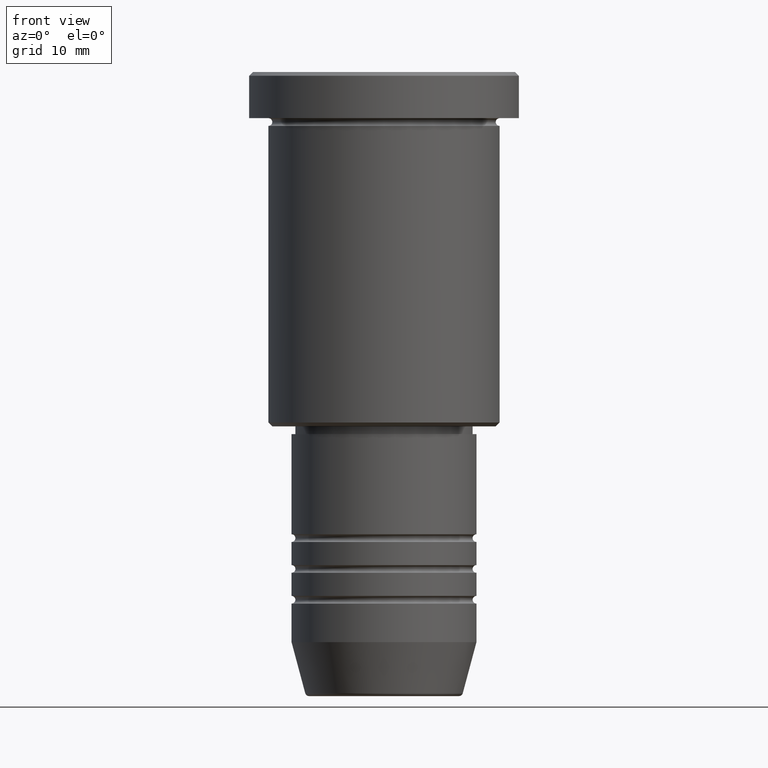
[diagram: clean part render]
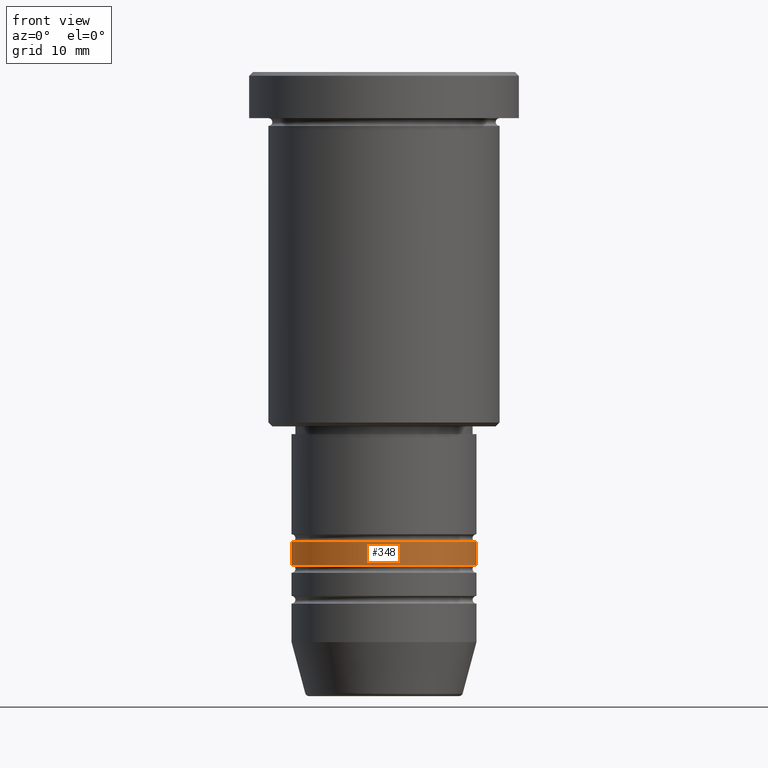
[diagram: same view with one face highlighted and labeled with its STEP entity id]
A machine part, front view. The second image highlights one B-rep face of the part: STEP entity #348.
In plain terms, the highlighted cylindrical surface (partial cylindrical patch) has radius 12 mm, axis along (-0, -0, 1).
Its self-contained STEP definition (entity closure, byte-faithful):
#15 = EDGE_CURVE ( 'NONE', #721, #742, #250, .T. ) ;
#41 = VECTOR ( 'NONE', #601, 1000.000000000000000 ) ;
#58 = DIRECTION ( 'NONE',  ( -0.000000000000000000, -0.000000000000000000, 1.000000000000000000 ) ) ;
#70 = DIRECTION ( 'NONE',  ( -0.000000000000000000, -0.000000000000000000, 1.000000000000000000 ) ) ;
#147 = ORIENTED_EDGE ( 'NONE', *, *, #713, .T. ) ;
#152 = DIRECTION ( 'NONE',  ( 1.000000000000000000, 0.000000000000000000, 0.000000000000000000 ) ) ;
#171 = CARTESIAN_POINT ( 'NONE',  ( -12.00000000000000000, 1.469576158976824144E-15, -60.99999999999990052 ) ) ;
#250 = LINE ( 'NONE', #509, #41 ) ;
#251 = CARTESIAN_POINT ( 'NONE',  ( 0.000000000000000000, 0.000000000000000000, -60.99999999999990052 ) ) ;
#264 = CARTESIAN_POINT ( 'NONE',  ( 12.00000000000000178, 0.000000000000000000, 0.000000000000000000 ) ) ;
#267 = FACE_OUTER_BOUND ( 'NONE', #1013, .T. ) ;
#290 = CARTESIAN_POINT ( 'NONE',  ( 12.00000000000000355, 0.000000000000000000, -63.99999999999991473 ) ) ;
#298 = ORIENTED_EDGE ( 'NONE', *, *, #1172, .T. ) ;
#338 = DIRECTION ( 'NONE',  ( -0.000000000000000000, -0.000000000000000000, 1.000000000000000000 ) ) ;
#348 = ADVANCED_FACE ( 'NONE', ( #267 ), #513, .T. ) ;
#356 = LINE ( 'NONE', #264, #1085 ) ;
#428 = DIRECTION ( 'NONE',  ( 1.000000000000000000, 0.000000000000000000, 0.000000000000000000 ) ) ;
#440 = VERTEX_POINT ( 'NONE', #290 ) ;
#464 = CIRCLE ( 'NONE', #602, 12.00000000000000355 ) ;
#476 = CARTESIAN_POINT ( 'NONE',  ( 12.00000000000000000, 0.000000000000000000, -60.99999999999990052 ) ) ;
#509 = CARTESIAN_POINT ( 'NONE',  ( -12.00000000000000178, 1.469576158976824144E-15, 0.000000000000000000 ) ) ;
#513 = CYLINDRICAL_SURFACE ( 'NONE', #836, 12.00000000000000178 ) ;
#528 = CARTESIAN_POINT ( 'NONE',  ( 0.000000000000000000, 0.000000000000000000, 0.000000000000000000 ) ) ;
#535 = DIRECTION ( 'NONE',  ( -0.000000000000000000, -0.000000000000000000, 1.000000000000000000 ) ) ;
#601 = DIRECTION ( 'NONE',  ( -0.000000000000000000, -0.000000000000000000, 1.000000000000000000 ) ) ;
#602 = AXIS2_PLACEMENT_3D ( 'NONE', #794, #338, #428 ) ;
#683 = AXIS2_PLACEMENT_3D ( 'NONE', #251, #70, #152 ) ;
#703 = CARTESIAN_POINT ( 'NONE',  ( -12.00000000000000533, 1.469576158976824539E-15, -63.99999999999991473 ) ) ;
#713 = EDGE_CURVE ( 'NONE', #721, #440, #464, .T. ) ;
#721 = VERTEX_POINT ( 'NONE', #703 ) ;
#742 = VERTEX_POINT ( 'NONE', #171 ) ;
#756 = ORIENTED_EDGE ( 'NONE', *, *, #1057, .F. ) ;
#794 = CARTESIAN_POINT ( 'NONE',  ( 0.000000000000000000, 0.000000000000000000, -63.99999999999991473 ) ) ;
#820 = CIRCLE ( 'NONE', #683, 12.00000000000000000 ) ;
#836 = AXIS2_PLACEMENT_3D ( 'NONE', #528, #58, #982 ) ;
#856 = VERTEX_POINT ( 'NONE', #476 ) ;
#982 = DIRECTION ( 'NONE',  ( 1.000000000000000000, 0.000000000000000000, 0.000000000000000000 ) ) ;
#1013 = EDGE_LOOP ( 'NONE', ( #1036, #147, #298, #756 ) ) ;
#1036 = ORIENTED_EDGE ( 'NONE', *, *, #15, .F. ) ;
#1057 = EDGE_CURVE ( 'NONE', #742, #856, #820, .T. ) ;
#1085 = VECTOR ( 'NONE', #535, 1000.000000000000000 ) ;
#1172 = EDGE_CURVE ( 'NONE', #440, #856, #356, .T. ) ;